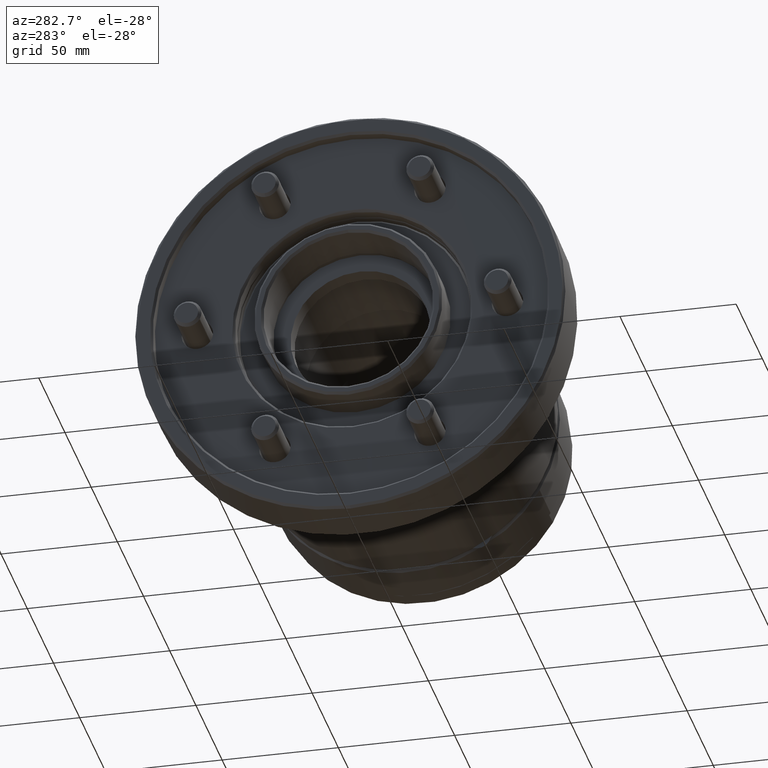
[diagram: clean part render]
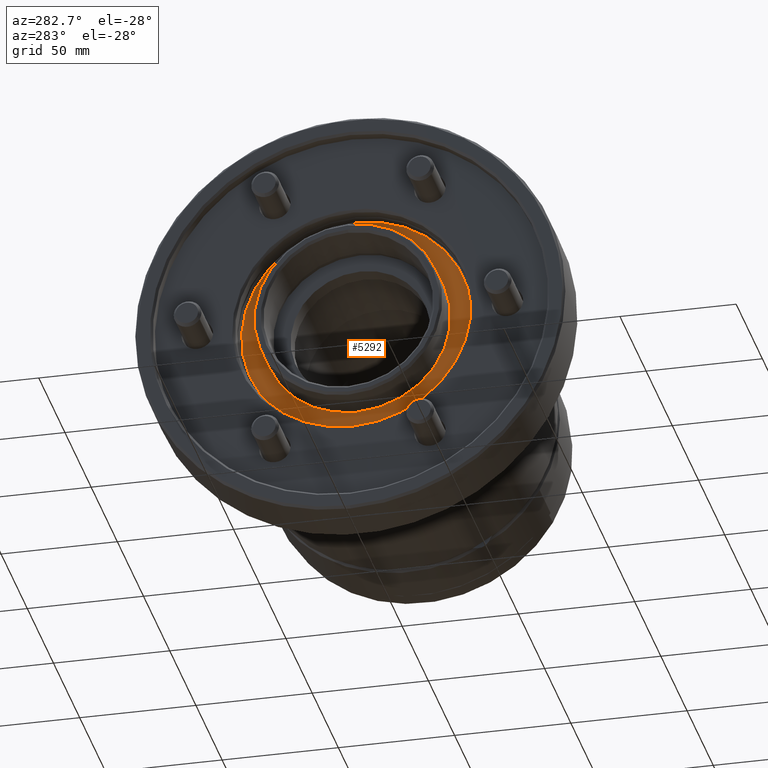
[diagram: same view with one face highlighted and labeled with its STEP entity id]
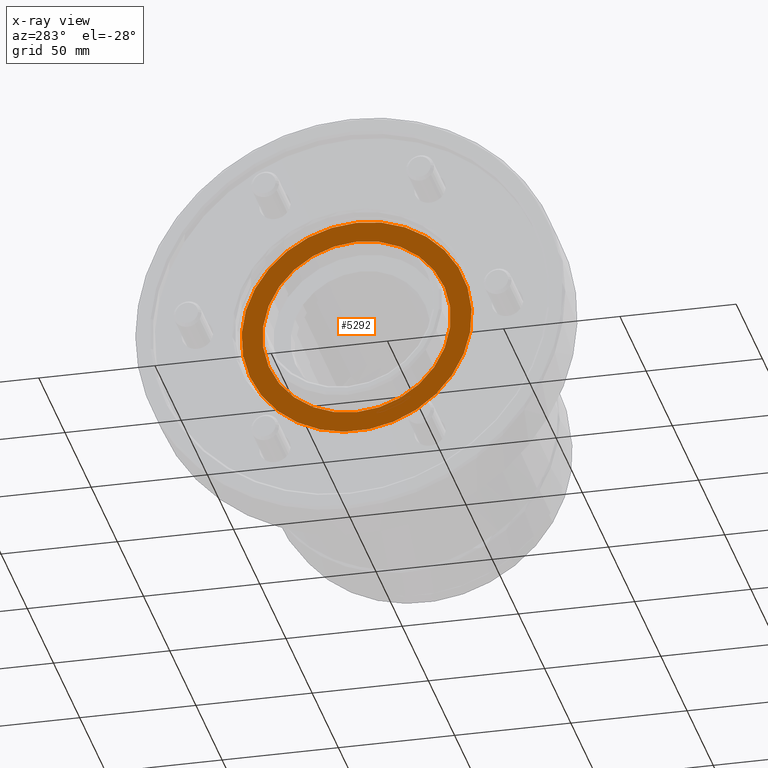
[diagram: x-ray of the same camera — body ghosted, the highlighted face saturated]
A machine part, auxiliary view. The second image highlights one B-rep face of the part: STEP entity #5292.
The next image is the same camera in x-ray: the body ghosted, the highlighted face saturated — about 0% of this face is hidden behind the body in this view.
In plain terms, the highlighted planar face has unit normal (1, 0, 0).
Its self-contained STEP definition (entity closure, byte-faithful):
#452 = CARTESIAN_POINT ( 'NONE',  ( 17.00000000000000000, 0.0000000000000000000, 0.0000000000000000000 ) ) ;
#677 = CIRCLE ( 'NONE', #1698, 49.50000000000000000 ) ;
#1432 = DIRECTION ( 'NONE',  ( -1.000000000000000000, -0.0000000000000000000, -0.0000000000000000000 ) ) ;
#1512 = VERTEX_POINT ( 'NONE', #3893 ) ;
#1636 = CARTESIAN_POINT ( 'NONE',  ( 17.00000000000000000, 0.0000000000000000000, 40.49999999999999289 ) ) ;
#1698 = AXIS2_PLACEMENT_3D ( 'NONE', #452, #2839, #5265 ) ;
#1875 = CARTESIAN_POINT ( 'NONE',  ( 17.00000000000000000, 50.50000000000000000, 0.0000000000000000000 ) ) ;
#2283 = EDGE_LOOP ( 'NONE', ( #4791 ) ) ;
#2402 = ORIENTED_EDGE ( 'NONE', *, *, #5636, .F. ) ;
#2459 = FACE_OUTER_BOUND ( 'NONE', #2283, .T. ) ;
#2839 = DIRECTION ( 'NONE',  ( -1.000000000000000000, -0.0000000000000000000, -0.0000000000000000000 ) ) ;
#3053 = EDGE_LOOP ( 'NONE', ( #2402 ) ) ;
#3315 = CIRCLE ( 'NONE', #7795, 40.49999999999999289 ) ;
#3811 = DIRECTION ( 'NONE',  ( 0.0000000000000000000, 0.0000000000000000000, 1.000000000000000000 ) ) ;
#3873 = EDGE_CURVE ( 'NONE', #1512, #1512, #677, .T. ) ;
#3893 = CARTESIAN_POINT ( 'NONE',  ( 17.00000000000000000, 0.0000000000000000000, -49.50000000000000000 ) ) ;
#4254 = DIRECTION ( 'NONE',  ( 1.000000000000000000, 0.0000000000000000000, 0.0000000000000000000 ) ) ;
#4791 = ORIENTED_EDGE ( 'NONE', *, *, #3873, .T. ) ;
#4856 = FACE_BOUND ( 'NONE', #3053, .T. ) ;
#5265 = DIRECTION ( 'NONE',  ( 0.0000000000000000000, 0.0000000000000000000, -1.000000000000000000 ) ) ;
#5292 = ADVANCED_FACE ( 'NONE', ( #2459, #4856 ), #7295, .F. ) ;
#5636 = EDGE_CURVE ( 'NONE', #7043, #7043, #3315, .T. ) ;
#6240 = AXIS2_PLACEMENT_3D ( 'NONE', #1875, #4254, #6687 ) ;
#6687 = DIRECTION ( 'NONE',  ( 0.0000000000000000000, 0.0000000000000000000, -1.000000000000000000 ) ) ;
#6832 = CARTESIAN_POINT ( 'NONE',  ( 17.00000000000000000, 0.0000000000000000000, 0.0000000000000000000 ) ) ;
#7043 = VERTEX_POINT ( 'NONE', #1636 ) ;
#7295 = PLANE ( 'NONE',  #6240 ) ;
#7795 = AXIS2_PLACEMENT_3D ( 'NONE', #6832, #1432, #3811 ) ;